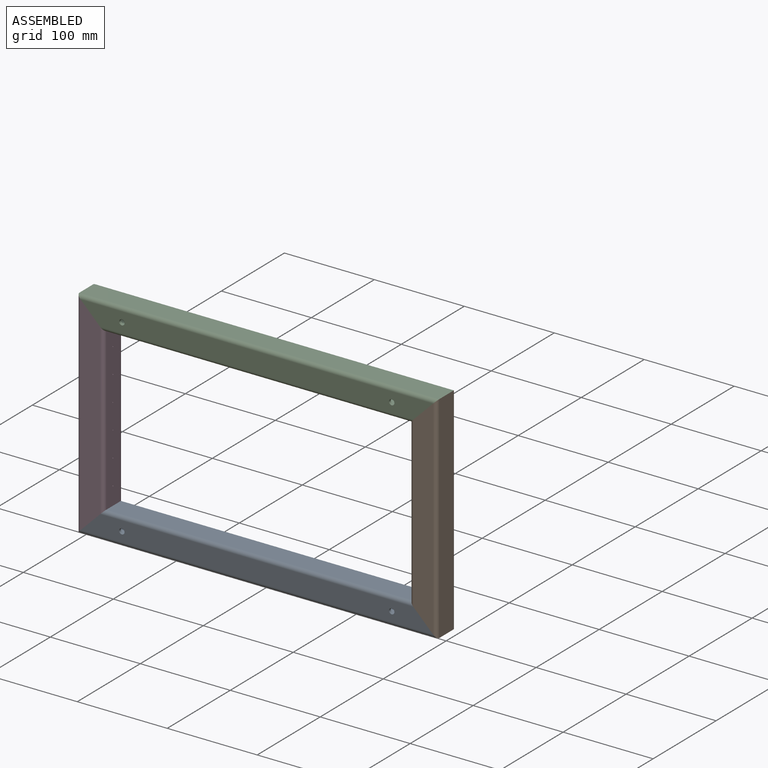
[diagram: assembled view]
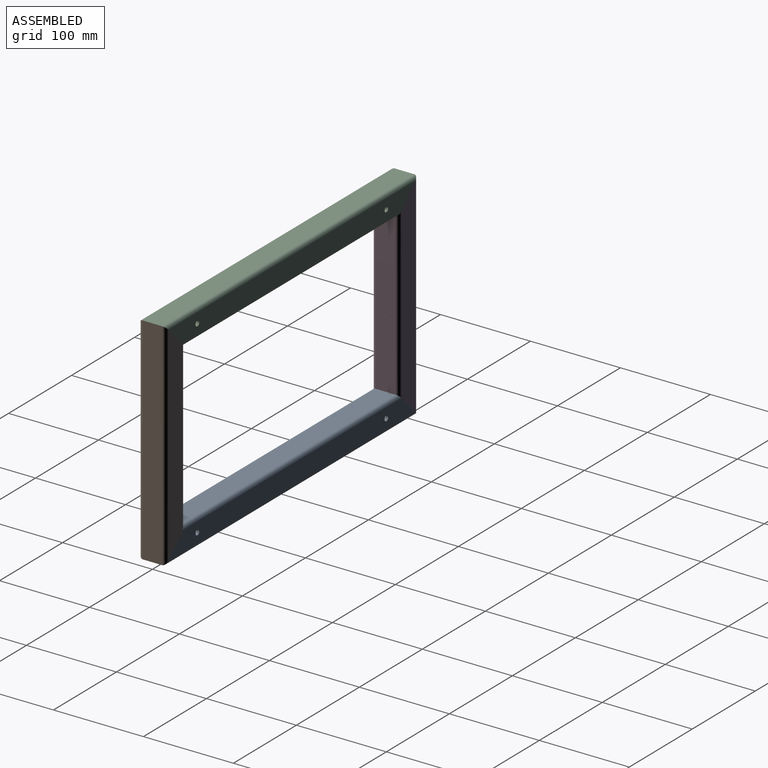
[diagram: assembled view, second angle]
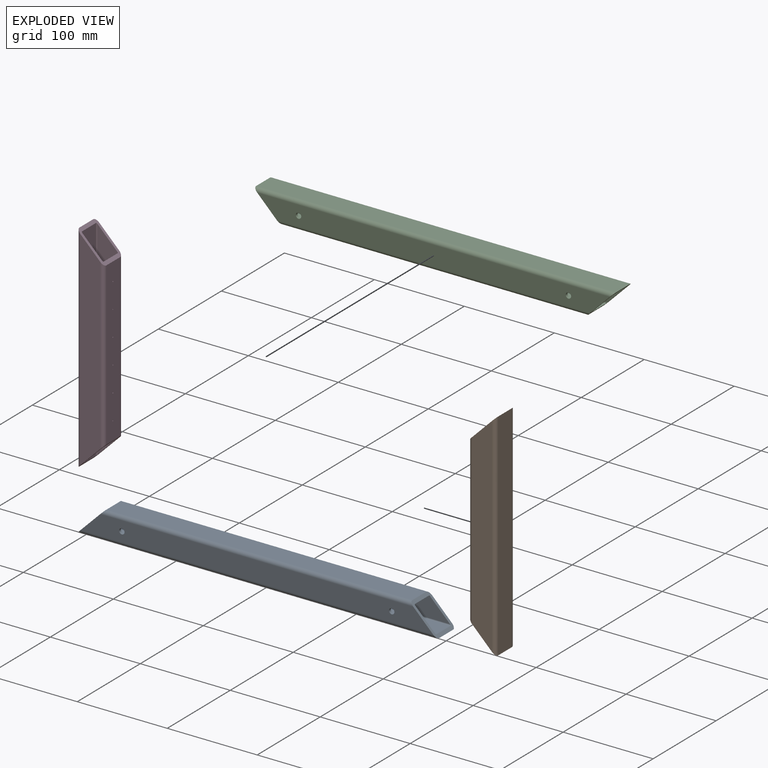
[diagram: exploded view]
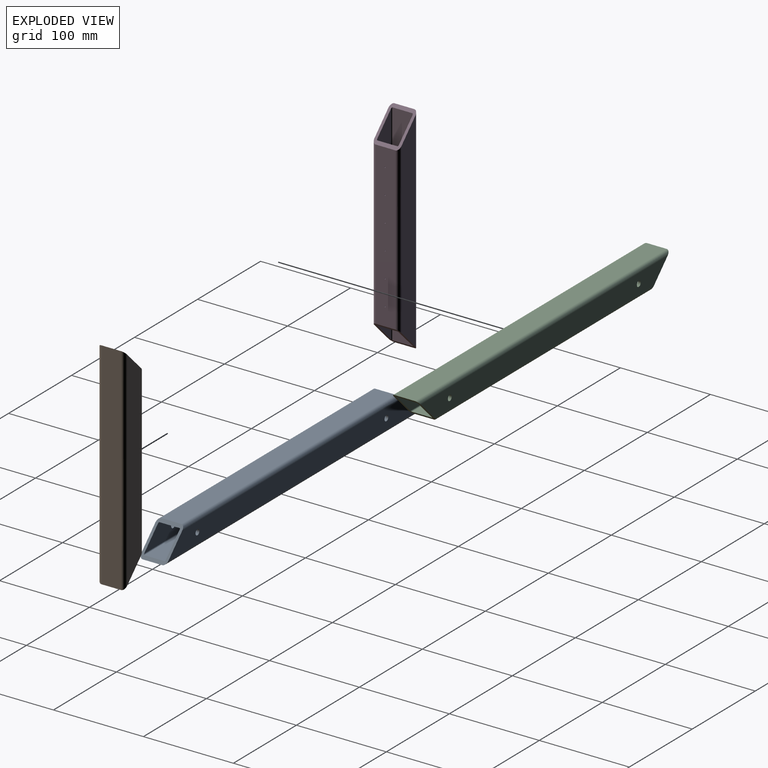
[diagram: exploded view, second angle]
ASSEMBLY  parts=4 mates=3
PART A: 22 faces, bbox 400x30x30 mm
  f0: cylinder r=4mm len=348mm, axis (-1,0,0), area 2154.5mm2, adj f6,f7,f8,f9
  f1: cylinder r=4mm len=400mm, axis (-1,0,0), area 2495mm2, adj f5,f6,f8,f9
  f2: cylinder r=4mm len=348mm, axis (-1,0,0), area 2154.5mm2, adj f4,f7,f8,f9
  f3: cylinder r=4mm len=400mm, axis (-1,0,0), area 2495mm2, adj f4,f5,f8,f9
  f4: plane 392x22mm, normal (0,1,0), area 8083.5mm2, adj f2,f3,f8,f9,f18,f19
  f5: plane 400x22mm, normal (0,0,-1), area 8800mm2, adj f1,f3,f8,f9
  f6: plane 392x22mm, normal (0,-1,0), area 8083.5mm2, adj f0,f1,f8,f9,f20,f21
  f7: plane 340x22mm, normal (0,0,1), area 7480mm2, adj f0,f2,f8,f9
  f8: plane 30x30mm, normal (0.71,0,0.71), area 440mm2, adj f0,f1,f2,f3,f4,f5,f6,f7
  f9: plane 30x30mm, normal (-0.71,0,0.71), area 440mm2, adj f0,f1,f2,f3,f4,f5,f6,f7
  f10: cylinder r=1mm len=394mm, axis (-1,0,0), area 617.8mm2, adj f8,f9,f11,f17
  f11: plane 392x22mm, normal (0,1,0), area 8083.5mm2, adj f8,f9,f10,f12,f20,f21
  f12: cylinder r=1mm len=348mm, axis (-1,0,0), area 544.6mm2, adj f8,f9,f11,f13
  f13: plane 346x22mm, normal (0,0,-1), area 7612mm2, adj f8,f9,f12,f14
  f14: cylinder r=1mm len=348mm, axis (-1,0,0), area 544.6mm2, adj f8,f9,f13,f15
  f15: plane 392x22mm, normal (0,-1,0), area 8083.5mm2, adj f8,f9,f14,f16,f18,f19
  f16: cylinder r=1mm len=394mm, axis (-1,0,0), area 617.8mm2, adj f8,f9,f15,f17
  f17: plane 394x22mm, normal (0,0,1), area 8668mm2, adj f8,f9,f10,f16
  f18: cylinder r=3mm len=6mm, axis (0,-1,0), area 56.5mm2, adj f4,f15
  f19: cylinder r=3mm len=6mm, axis (0,-1,0), area 56.5mm2, adj f4,f15
  f20: cylinder r=3mm len=6mm, axis (0,-1,0), area 56.5mm2, adj f6,f11
  f21: cylinder r=3mm len=6mm, axis (0,-1,0), area 56.5mm2, adj f6,f11
PART B: 24 faces, bbox 240x30x30 mm
  f0: cylinder r=4mm len=188mm, axis (-1,0,0), area 1149.2mm2, adj f6,f7,f8,f9
  f1: cylinder r=4mm len=240mm, axis (-1,0,0), area 1489.7mm2, adj f5,f6,f8,f9
  f2: cylinder r=4mm len=188mm, axis (-1,0,0), area 1149.2mm2, adj f4,f7,f8,f9
  f3: cylinder r=4mm len=240mm, axis (-1,0,0), area 1489.7mm2, adj f4,f5,f8,f9
  f4: plane 232x22mm, normal (0,1,0), area 4620mm2, adj f2,f3,f8,f9
  f5: plane 240x22mm, normal (0,0,-1), area 5280mm2, adj f1,f3,f8,f9
  f6: plane 232x22mm, normal (0,-1,0), area 4620mm2, adj f0,f1,f8,f9
  f7: plane 180x22mm, normal (0,0,1), area 3955.3mm2, adj f0,f2,f8,f9,f18,f19,f20,f21
  f8: plane 30x30mm, normal (0.71,0,0.71), area 440mm2, adj f0,f1,f2,f3,f4,f5,f6,f7
  f9: plane 30x30mm, normal (-0.71,0,0.71), area 440mm2, adj f0,f1,f2,f3,f4,f5,f6,f7
  f10: cylinder r=1mm len=234mm, axis (-1,0,0), area 366.4mm2, adj f8,f9,f11,f17
  f11: plane 232x22mm, normal (0,1,0), area 4620mm2, adj f8,f9,f10,f12
  f12: cylinder r=1mm len=188mm, axis (-1,0,0), area 293.3mm2, adj f8,f9,f11,f13
  f13: plane 186x22mm, normal (0,0,-1), area 4087.3mm2, adj f8,f9,f12,f14,f18,f19,f20,f21
  f14: cylinder r=1mm len=188mm, axis (-1,0,0), area 293.3mm2, adj f8,f9,f13,f15
  f15: plane 232x22mm, normal (0,-1,0), area 4620mm2, adj f8,f9,f14,f16
  f16: cylinder r=1mm len=234mm, axis (-1,0,0), area 366.4mm2, adj f8,f9,f15,f17
  f17: plane 234x22mm, normal (0,0,1), area 5148mm2, adj f8,f9,f10,f16
  f18: cylinder r=0.5mm len=3mm, axis (0,0,1), area 9.4mm2, adj f7,f13
  f19: cylinder r=0.5mm len=3mm, axis (0,0,1), area 9.4mm2, adj f7,f13
  f20: cylinder r=0.5mm len=3mm, axis (0,0,1), area 9.4mm2, adj f7,f13
  f21: cylinder r=0.5mm len=3mm, axis (0,0,1), area 9.4mm2, adj f7,f13
  f22: cylinder r=0.5mm len=3mm, axis (0,0,1), area 9.4mm2, adj f7,f13
  f23: cylinder r=0.5mm len=3mm, axis (0,0,1), area 9.4mm2, adj f7,f13
PART C: same geometry as A
PART D: same geometry as B
PLACE A t=(0,-15,0)mm
PLACE B rot(axis=(0,-1,0),90deg) t=(400,-15,0)mm
PLACE C rot(axis=(0,-1,0),180deg) t=(400,-15,240)mm
PLACE D rot(axis=(0,1,0),90deg) t=(0,-15,240)mm
MATE fastened A.f15 <-> B.f15  axis (0,-1,0) through (385,12,15)mm
MATE fastened C.f15 <-> D.f15  axis (0,-1,0) through (15,12,225)mm
MATE fastened B.f15 <-> C.f15  axis (0,-1,0) through (385,12,225)mm
